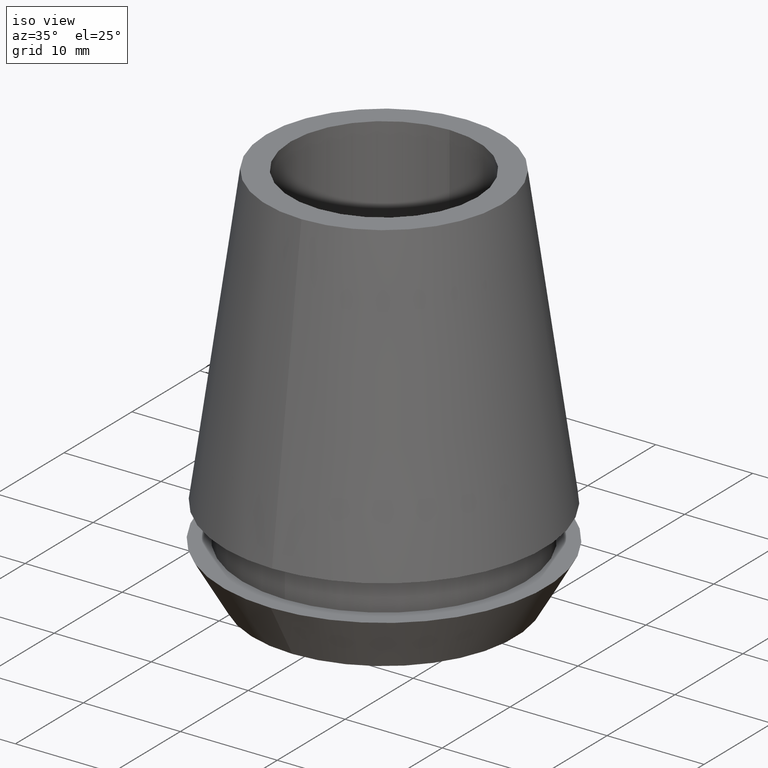
[diagram: clean part render]
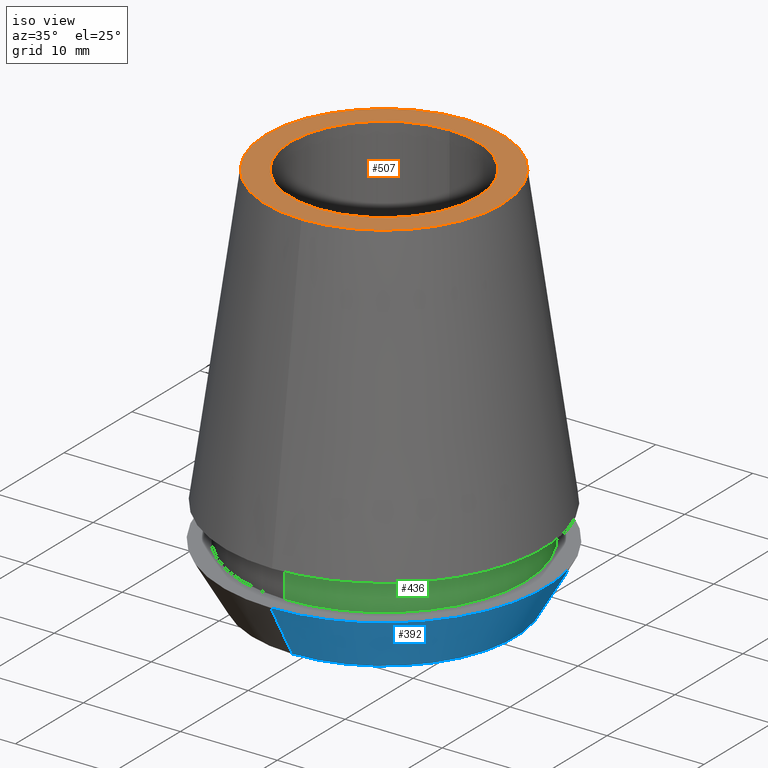
[diagram: same view with three faces highlighted in distinct colors, each labeled with its STEP entity id]
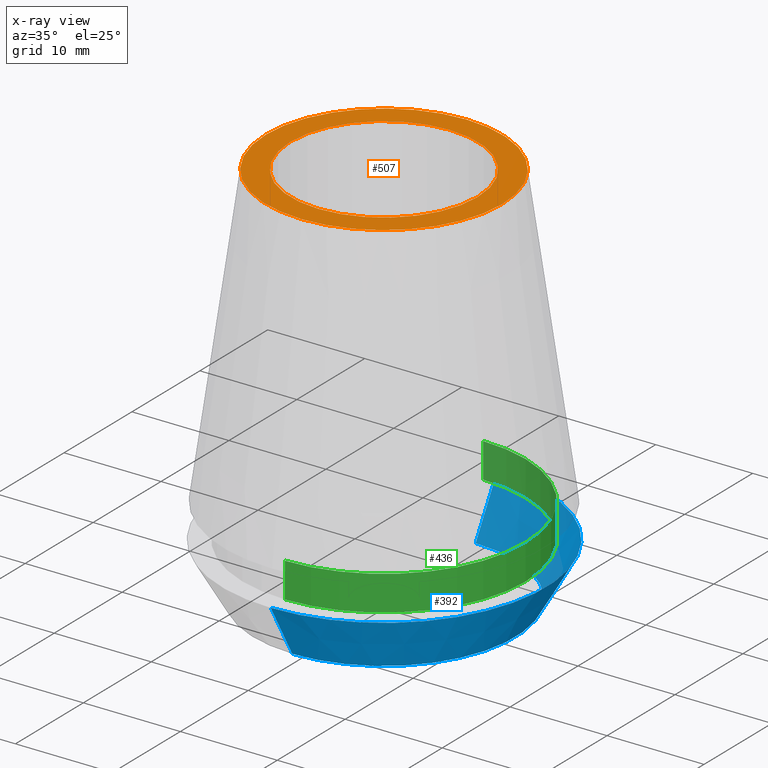
[diagram: x-ray of the same camera — body ghosted, the three highlighted faces saturated]
A machine part, iso view with three faces highlighted in distinct colors.
The next image is the same camera in x-ray (body ghosted, the three faces saturated) — at least one of them is partly hidden behind the body in this view.
Their STEP definitions:

[orange] entity #507 — the highlighted planar face has unit normal (0, 0, -1).
#216=CARTESIAN_POINT('',(0.E0,1.370257303566E-14,-4.121147867409E-13));
#217=DIRECTION('',(0.E0,0.E0,-1.E0));
#218=DIRECTION('',(0.E0,-1.E0,0.E0));
#219=AXIS2_PLACEMENT_3D('',#216,#217,#218);
#224=CARTESIAN_POINT('',(0.E0,1.370257303566E-14,-4.121147867409E-13));
#225=DIRECTION('',(0.E0,0.E0,-1.E0));
#226=DIRECTION('',(0.E0,1.E0,0.E0));
#227=AXIS2_PLACEMENT_3D('',#224,#225,#226);
#232=CARTESIAN_POINT('',(0.E0,1.583958170017E-14,0.E0));
#233=DIRECTION('',(0.E0,0.E0,1.E0));
#234=DIRECTION('',(0.E0,-1.E0,0.E0));
#235=AXIS2_PLACEMENT_3D('',#232,#233,#234);
#240=CARTESIAN_POINT('',(0.E0,1.583958170017E-14,0.E0));
#241=DIRECTION('',(0.E0,0.E0,1.E0));
#242=DIRECTION('',(0.E0,1.E0,0.E0));
#243=AXIS2_PLACEMENT_3D('',#240,#241,#242);
#249=CARTESIAN_POINT('',(0.E0,9.65E0,0.E0));
#251=VERTEX_POINT('',#249);
#252=CARTESIAN_POINT('',(0.E0,-9.65E0,0.E0));
#253=VERTEX_POINT('',#252);
#284=CARTESIAN_POINT('',(0.E0,1.215761357924E1,-2.273736754432E-13));
#285=VERTEX_POINT('',#284);
#286=CARTESIAN_POINT('',(0.E0,-1.215761357924E1,-2.273736754432E-13));
#287=VERTEX_POINT('',#286);
#494=CARTESIAN_POINT('',(0.E0,1.559465234034E-14,0.E0));
#495=DIRECTION('',(0.E0,0.E0,-1.E0));
#496=DIRECTION('',(0.E0,-1.E0,0.E0));
#497=AXIS2_PLACEMENT_3D('',#494,#495,#496);
#498=PLANE('',#497);
#499=ORIENTED_EDGE('',*,*,#487,.T.);
#500=ORIENTED_EDGE('',*,*,#476,.T.);
#501=EDGE_LOOP('',(#499,#500));
#502=FACE_OUTER_BOUND('',#501,.F.);
#503=ORIENTED_EDGE('',*,*,#295,.T.);
#504=ORIENTED_EDGE('',*,*,#313,.T.);
#505=EDGE_LOOP('',(#503,#504));
#506=FACE_BOUND('',#505,.F.);
#220=CIRCLE('',#219,1.215761357924E1);
#228=CIRCLE('',#227,1.215761357924E1);
#236=CIRCLE('',#235,9.65E0);
#244=CIRCLE('',#243,9.65E0);
#295=EDGE_CURVE('',#253,#251,#236,.T.);
#313=EDGE_CURVE('',#251,#253,#244,.T.);
#476=EDGE_CURVE('',#285,#287,#228,.T.);
#487=EDGE_CURVE('',#287,#285,#220,.T.);
#507=ADVANCED_FACE('',(#502,#506),#498,.F.);

[blue] entity #392 — the highlighted conical surface has half-angle 30 deg.
#78=CARTESIAN_POINT('',(0.E0,1.103284301352E-14,-4.E1));
#79=DIRECTION('',(0.E0,0.E0,1.E0));
#80=DIRECTION('',(0.E0,-1.E0,0.E0));
#81=AXIS2_PLACEMENT_3D('',#78,#79,#80);
#110=DIRECTION('',(0.E0,-4.999999999999E-1,-8.660254037845E-1));
#111=VECTOR('',#110,6.350852961084E0);
#112=CARTESIAN_POINT('',(0.E0,1.6675E1,-3.45E1));
#113=LINE('',#112,#111);
#117=DIRECTION('',(0.E0,4.999999999999E-1,-8.660254037845E-1));
#118=VECTOR('',#117,6.350852961084E0);
#119=CARTESIAN_POINT('',(0.E0,-1.6675E1,-3.45E1));
#120=LINE('',#119,#118);
#132=CARTESIAN_POINT('',(0.E0,1.103284301352E-14,-3.45E1));
#133=DIRECTION('',(0.E0,0.E0,-1.E0));
#134=DIRECTION('',(0.E0,1.E0,0.E0));
#135=AXIS2_PLACEMENT_3D('',#132,#133,#134);
#264=CARTESIAN_POINT('',(0.E0,-1.349957351946E1,-4.E1));
#265=CARTESIAN_POINT('',(0.E0,1.349957351946E1,-4.E1));
#266=VERTEX_POINT('',#264);
#267=VERTEX_POINT('',#265);
#268=CARTESIAN_POINT('',(0.E0,1.6675E1,-3.45E1));
#269=VERTEX_POINT('',#268);
#270=CARTESIAN_POINT('',(0.E0,-1.6675E1,-3.45E1));
#271=VERTEX_POINT('',#270);
#378=CARTESIAN_POINT('',(0.E0,1.103284301352E-14,-3.725E1));
#379=DIRECTION('',(0.E0,0.E0,1.E0));
#380=DIRECTION('',(0.E0,1.E0,0.E0));
#381=AXIS2_PLACEMENT_3D('',#378,#379,#380);
#382=CONICAL_SURFACE('',#381,1.508728675973E1,3.E1);
#384=ORIENTED_EDGE('',*,*,#383,.T.);
#385=ORIENTED_EDGE('',*,*,#367,.F.);
#387=ORIENTED_EDGE('',*,*,#386,.F.);
#389=ORIENTED_EDGE('',*,*,#388,.F.);
#390=EDGE_LOOP('',(#384,#385,#387,#389));
#391=FACE_OUTER_BOUND('',#390,.F.);
#82=CIRCLE('',#81,1.349957351946E1);
#136=CIRCLE('',#135,1.6675E1);
#367=EDGE_CURVE('',#266,#267,#82,.T.);
#383=EDGE_CURVE('',#269,#267,#113,.T.);
#386=EDGE_CURVE('',#271,#266,#120,.T.);
#388=EDGE_CURVE('',#269,#271,#136,.T.);
#392=ADVANCED_FACE('',(#391),#382,.T.);

[green] entity #436 — the highlighted cylindrical surface (partial cylindrical patch) has radius 14.6 mm, axis along (0, 0, -1).
#140=CARTESIAN_POINT('',(0.E0,1.583958170017E-14,-3.45E1));
#141=DIRECTION('',(0.E0,0.E0,1.E0));
#142=DIRECTION('',(0.E0,-1.E0,0.E0));
#143=AXIS2_PLACEMENT_3D('',#140,#141,#142);
#156=DIRECTION('',(0.E0,0.E0,-1.E0));
#157=VECTOR('',#156,3.6E0);
#158=CARTESIAN_POINT('',(0.E0,1.46E1,-3.09E1));
#159=LINE('',#158,#157);
#163=DIRECTION('',(0.E0,0.E0,-1.E0));
#164=VECTOR('',#163,3.6E0);
#165=CARTESIAN_POINT('',(0.E0,-1.46E1,-3.09E1));
#166=LINE('',#165,#164);
#194=CARTESIAN_POINT('',(0.E0,1.583958170017E-14,-3.09E1));
#195=DIRECTION('',(0.E0,0.E0,-1.E0));
#196=DIRECTION('',(0.E0,1.E0,0.E0));
#197=AXIS2_PLACEMENT_3D('',#194,#195,#196);
#272=CARTESIAN_POINT('',(0.E0,-1.46E1,-3.45E1));
#273=CARTESIAN_POINT('',(0.E0,1.46E1,-3.45E1));
#274=VERTEX_POINT('',#272);
#275=VERTEX_POINT('',#273);
#276=CARTESIAN_POINT('',(0.E0,1.46E1,-3.09E1));
#277=VERTEX_POINT('',#276);
#278=CARTESIAN_POINT('',(0.E0,-1.46E1,-3.09E1));
#279=VERTEX_POINT('',#278);
#422=CARTESIAN_POINT('',(0.E0,1.583958170017E-14,2.E0));
#423=DIRECTION('',(0.E0,0.E0,-1.E0));
#424=DIRECTION('',(0.E0,-1.E0,0.E0));
#425=AXIS2_PLACEMENT_3D('',#422,#423,#424);
#426=CYLINDRICAL_SURFACE('',#425,1.46E1);
#428=ORIENTED_EDGE('',*,*,#427,.T.);
#429=ORIENTED_EDGE('',*,*,#415,.F.);
#431=ORIENTED_EDGE('',*,*,#430,.F.);
#433=ORIENTED_EDGE('',*,*,#432,.F.);
#434=EDGE_LOOP('',(#428,#429,#431,#433));
#435=FACE_OUTER_BOUND('',#434,.F.);
#144=CIRCLE('',#143,1.46E1);
#198=CIRCLE('',#197,1.46E1);
#415=EDGE_CURVE('',#274,#275,#144,.T.);
#427=EDGE_CURVE('',#277,#275,#159,.T.);
#430=EDGE_CURVE('',#279,#274,#166,.T.);
#432=EDGE_CURVE('',#277,#279,#198,.T.);
#436=ADVANCED_FACE('',(#435),#426,.T.);